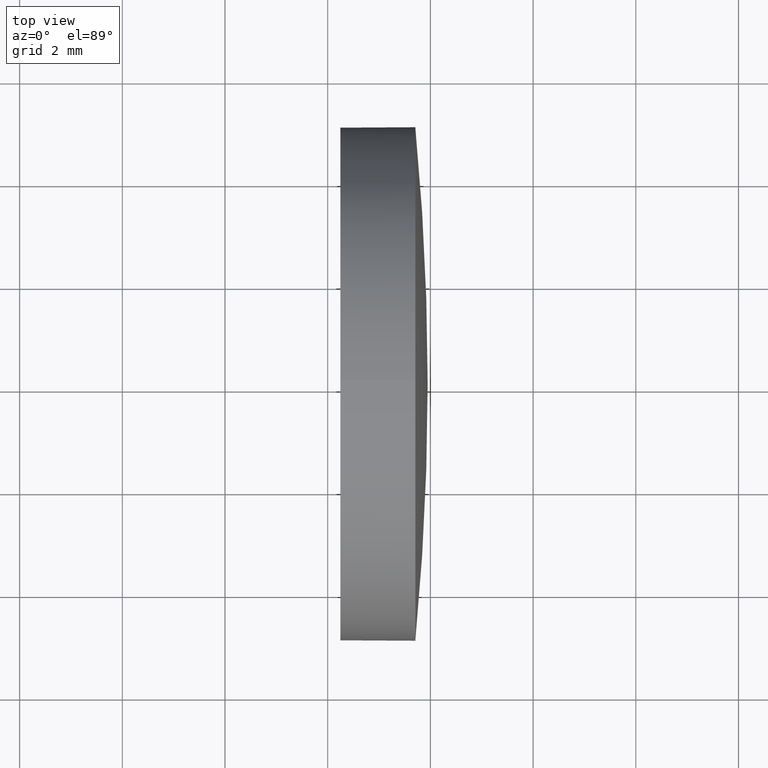
[diagram: clean part render]
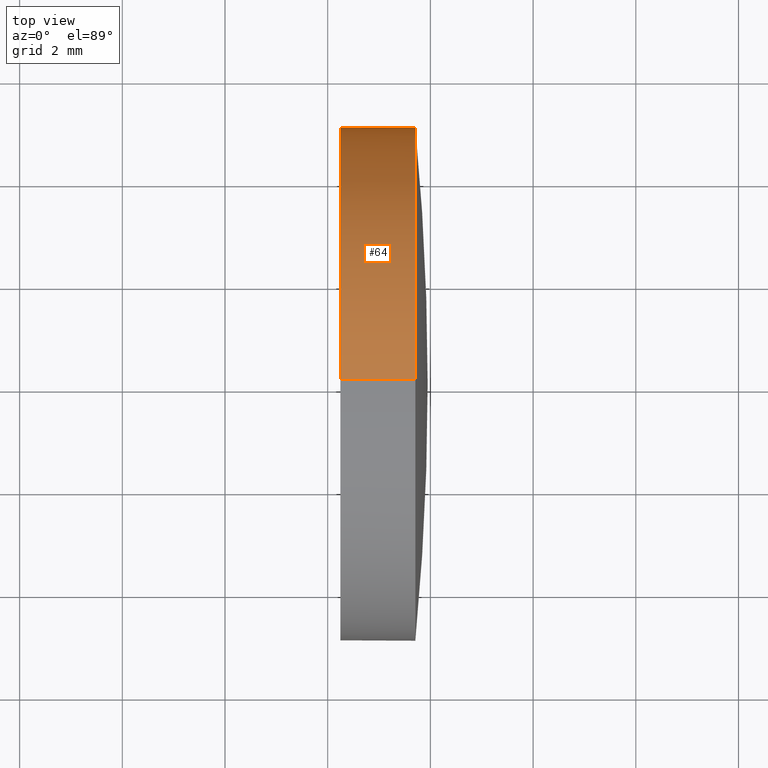
[diagram: same view with one face highlighted and labeled with its STEP entity id]
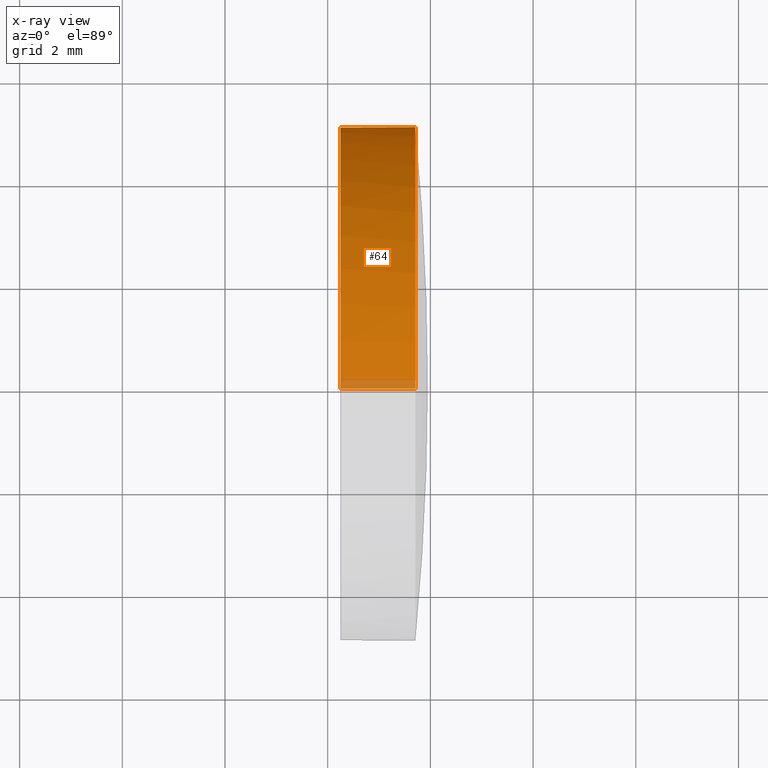
[diagram: x-ray of the same camera — body ghosted, the highlighted face saturated]
A machine part, top view. The second image highlights one B-rep face of the part: STEP entity #64.
The next image is the same camera in x-ray: the body ghosted, the highlighted face saturated — about 3% of this face is hidden behind the body in this view.
In plain terms, the highlighted cylindrical surface (partial cylindrical patch) has radius 5 mm, axis along (-1, -0, -0).
Its self-contained STEP definition (entity closure, byte-faithful):
#8 = CIRCLE ( 'NONE', #115, 5.000000000000004400 ) ;
#10 = CARTESIAN_POINT ( 'NONE',  ( 861.0148035766878800, 272.0667611182083200, -5.000000000000004400 ) ) ;
#16 = EDGE_CURVE ( 'NONE', #160, #42, #150, .T. ) ;
#18 = EDGE_CURVE ( 'NONE', #173, #118, #8, .T. ) ;
#22 = CIRCLE ( 'NONE', #131, 5.000000000000004400 ) ;
#23 = EDGE_LOOP ( 'NONE', ( #134, #67, #54, #132, #183 ) ) ;
#24 = EDGE_CURVE ( 'NONE', #118, #160, #38, .T. ) ;
#27 = DIRECTION ( 'NONE',  ( 0.0000000000000000000, 0.0000000000000000000, 1.000000000000000000 ) ) ;
#29 = CARTESIAN_POINT ( 'NONE',  ( 861.0148035766878800, 272.0667611182083200, 5.000000000000004400 ) ) ;
#37 = EDGE_CURVE ( 'NONE', #173, #154, #144, .T. ) ;
#38 = CIRCLE ( 'NONE', #151, 5.000000000000004400 ) ;
#42 = VERTEX_POINT ( 'NONE', #168 ) ;
#44 = DIRECTION ( 'NONE',  ( -1.000000000000000000, -0.0000000000000000000, -0.0000000000000000000 ) ) ;
#54 = ORIENTED_EDGE ( 'NONE', *, *, #63, .F. ) ;
#59 = CARTESIAN_POINT ( 'NONE',  ( 863.7063241507552200, 272.0667611182083200, 5.000000000000004400 ) ) ;
#63 = EDGE_CURVE ( 'NONE', #154, #42, #22, .T. ) ;
#64 = ADVANCED_FACE ( 'NONE', ( #104 ), #148, .T. ) ;
#67 = ORIENTED_EDGE ( 'NONE', *, *, #16, .T. ) ;
#81 = VECTOR ( 'NONE', #136, 1000.000000000000000 ) ;
#83 = CARTESIAN_POINT ( 'NONE',  ( 861.0148035766878800, 272.0667611182083200, 0.0000000000000000000 ) ) ;
#96 = DIRECTION ( 'NONE',  ( -1.000000000000000000, -0.0000000000000000000, -0.0000000000000000000 ) ) ;
#98 = DIRECTION ( 'NONE',  ( 0.0000000000000000000, 0.0000000000000000000, 1.000000000000000000 ) ) ;
#99 = DIRECTION ( 'NONE',  ( -1.000000000000000000, -0.0000000000000000000, -0.0000000000000000000 ) ) ;
#104 = FACE_OUTER_BOUND ( 'NONE', #23, .T. ) ;
#106 = VECTOR ( 'NONE', #99, 1000.000000000000000 ) ;
#109 = DIRECTION ( 'NONE',  ( -1.000000000000000000, -0.0000000000000000000, -0.0000000000000000000 ) ) ;
#111 = CARTESIAN_POINT ( 'NONE',  ( 863.7063241507552200, 272.0667611182083200, 0.0000000000000000000 ) ) ;
#114 = CARTESIAN_POINT ( 'NONE',  ( 863.7063241507552200, 272.0667611182083200, -5.000000000000004400 ) ) ;
#115 = AXIS2_PLACEMENT_3D ( 'NONE', #111, #44, #98 ) ;
#116 = CARTESIAN_POINT ( 'NONE',  ( 862.2463241507551900, 272.0667611182083200, 5.000000000000004400 ) ) ;
#118 = VERTEX_POINT ( 'NONE', #133 ) ;
#126 = DIRECTION ( 'NONE',  ( 0.0000000000000000000, 0.0000000000000000000, 1.000000000000000000 ) ) ;
#131 = AXIS2_PLACEMENT_3D ( 'NONE', #180, #109, #27 ) ;
#132 = ORIENTED_EDGE ( 'NONE', *, *, #37, .F. ) ;
#133 = CARTESIAN_POINT ( 'NONE',  ( 863.7063241507552200, 277.0667611182083800, 0.0000000000000000000 ) ) ;
#134 = ORIENTED_EDGE ( 'NONE', *, *, #24, .T. ) ;
#136 = DIRECTION ( 'NONE',  ( -1.000000000000000000, -0.0000000000000000000, -0.0000000000000000000 ) ) ;
#144 = LINE ( 'NONE', #29, #106 ) ;
#148 = CYLINDRICAL_SURFACE ( 'NONE', #172, 5.000000000000004400 ) ;
#150 = LINE ( 'NONE', #10, #81 ) ;
#151 = AXIS2_PLACEMENT_3D ( 'NONE', #153, #167, #126 ) ;
#153 = CARTESIAN_POINT ( 'NONE',  ( 863.7063241507552200, 272.0667611182083200, 0.0000000000000000000 ) ) ;
#154 = VERTEX_POINT ( 'NONE', #116 ) ;
#160 = VERTEX_POINT ( 'NONE', #114 ) ;
#167 = DIRECTION ( 'NONE',  ( -1.000000000000000000, -0.0000000000000000000, -0.0000000000000000000 ) ) ;
#168 = CARTESIAN_POINT ( 'NONE',  ( 862.2463241507551900, 272.0667611182083200, -5.000000000000004400 ) ) ;
#172 = AXIS2_PLACEMENT_3D ( 'NONE', #83, #96, #181 ) ;
#173 = VERTEX_POINT ( 'NONE', #59 ) ;
#180 = CARTESIAN_POINT ( 'NONE',  ( 862.2463241507551900, 272.0667611182083200, 0.0000000000000000000 ) ) ;
#181 = DIRECTION ( 'NONE',  ( 0.0000000000000000000, 0.0000000000000000000, 1.000000000000000000 ) ) ;
#183 = ORIENTED_EDGE ( 'NONE', *, *, #18, .T. ) ;